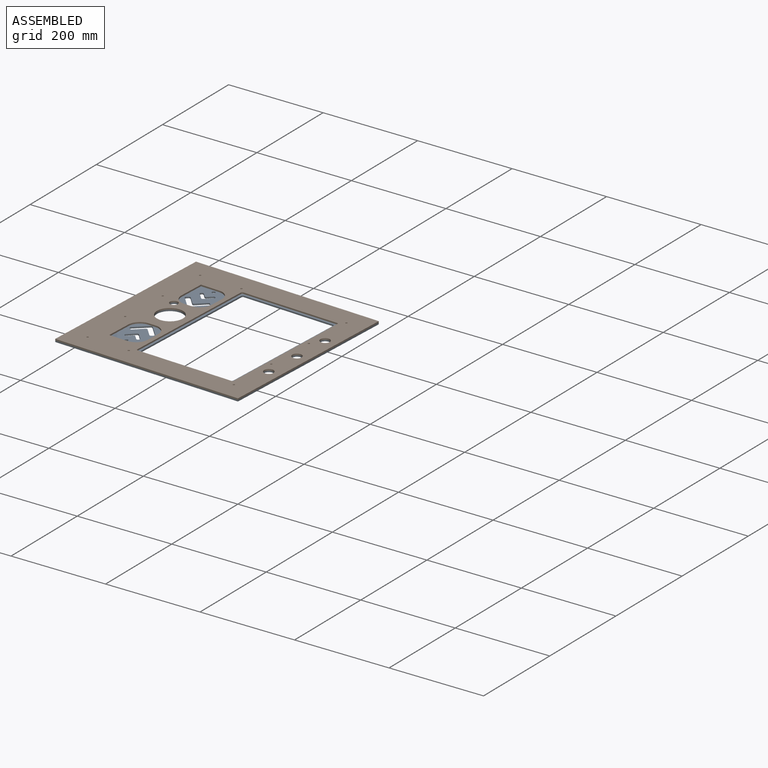
[diagram: assembled view]
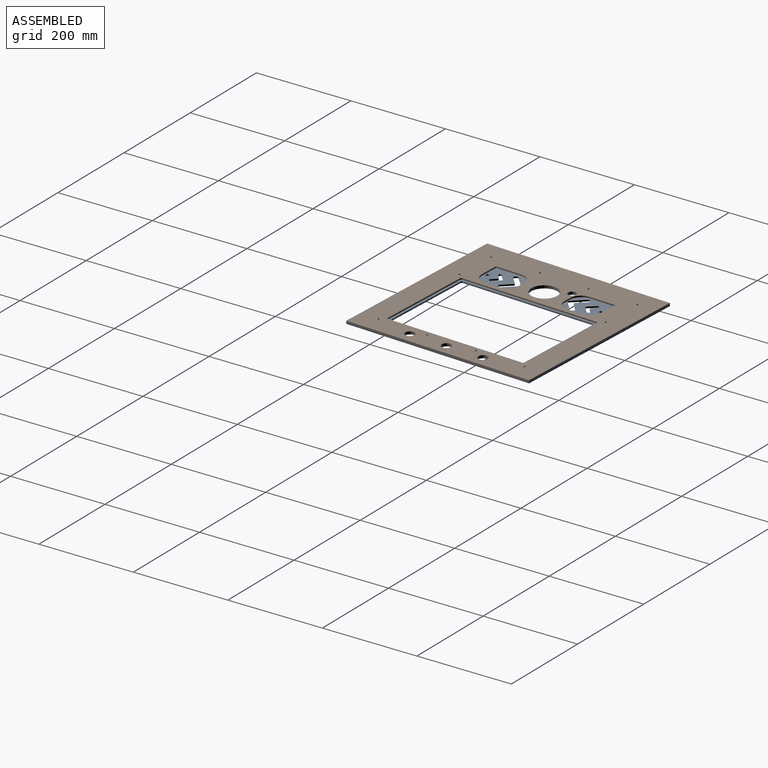
[diagram: assembled view, second angle]
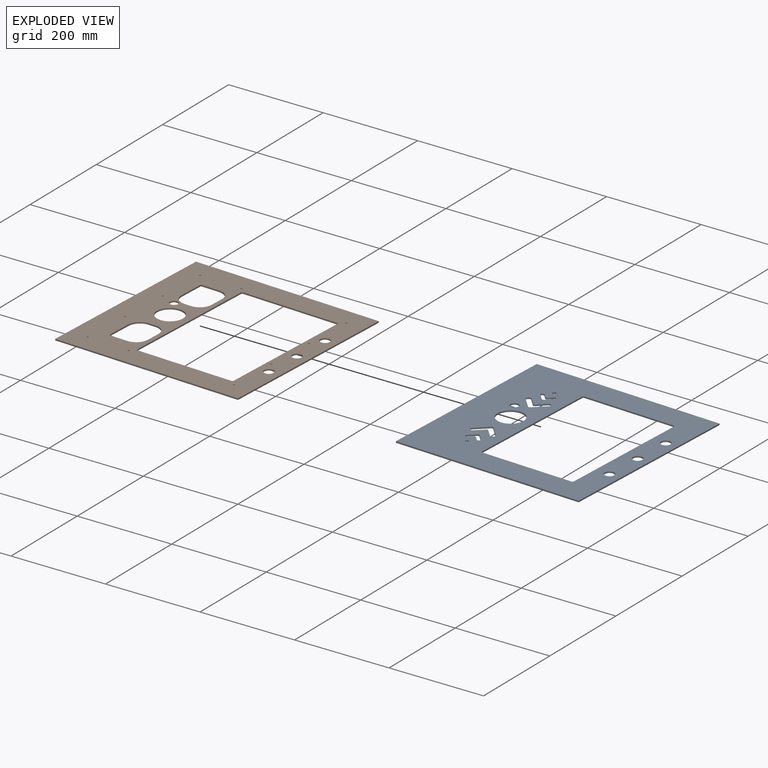
[diagram: exploded view]
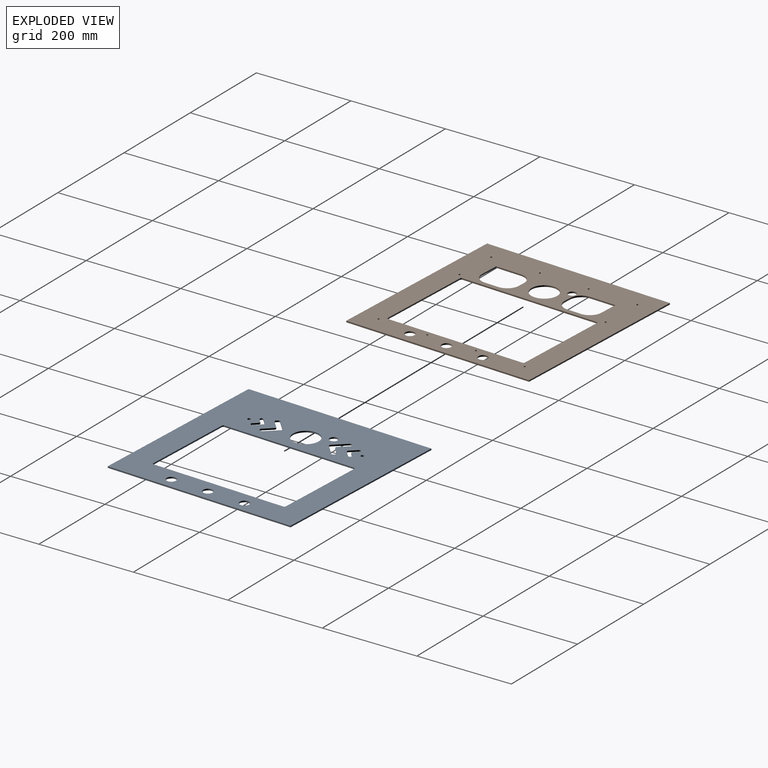
[diagram: exploded view, second angle]
ASSEMBLY  parts=2 mates=3
PART A: 69 faces, bbox 400x3x400 mm
  f0: plane 400x400mm, normal (0,-1,0), area 96124.4mm2, adj f2,f3,f4,f5,f6,f7,f8,f9
  f1: plane 400x400mm, normal (0,1,0), area 96124.4mm2, adj f2,f3,f4,f5,f6,f7,f8,f9
  f2: plane 400x3mm, normal (1,0,0), area 1200mm2, adj f0,f1,f3,f5
  f3: plane 400x3mm, normal (0,0,1), area 1200mm2, adj f0,f1,f2,f4
  f4: plane 400x3mm, normal (-1,0,0), area 1200mm2, adj f0,f1,f3,f5
  f5: plane 400x3mm, normal (0,0,-1), area 1200mm2, adj f0,f1,f2,f4
  f6: cylinder r=27.5mm len=55mm, axis (0,1,0), area 518.4mm2, adj f0,f1
  f7: cylinder r=10mm len=20mm, axis (0,1,0), area 188.5mm2, adj f0,f1
  f8: cylinder r=10mm len=20mm, axis (0,1,0), area 188.5mm2, adj f0,f1
  f9: cylinder r=10mm len=20mm, axis (0,1,0), area 188.5mm2, adj f0,f1
  f10: cylinder r=3.5mm len=7mm, axis (0,-1,0), area 66mm2, adj f0,f1
  f11: plane 13.44x13.44mm, normal (0.71,0,0.71), area 57mm2, adj f0,f1,f23,f28
  f12: plane 13.44x13.44mm, normal (-0.71,0,0.71), area 57mm2, adj f0,f1,f23,f24
  f13: plane 3x0.71mm, normal (-0.71,0,-0.71), area 3mm2, adj f0,f1,f24,f25
  f14: plane 8.49x8.49mm, normal (0.71,0,-0.71), area 36mm2, adj f0,f1,f25,f26
  f15: plane 8.49x8.49mm, normal (-0.71,0,-0.71), area 36mm2, adj f0,f1,f26,f27
  f16: plane 3x0.71mm, normal (0.71,0,-0.71), area 3mm2, adj f0,f1,f27,f28
  f17: plane 3x2.83mm, normal (0.71,0,-0.71), area 12mm2, adj f0,f1,f29,f34
  f18: plane 24.04x24.04mm, normal (0.71,0,0.71), area 102mm2, adj f0,f1,f33,f34
  f19: plane 24.04x24.04mm, normal (-0.71,0,0.71), area 102mm2, adj f0,f1,f32,f33
  f20: plane 3x2.83mm, normal (-0.71,0,-0.71), area 12mm2, adj f0,f1,f31,f32
  f21: plane 16.97x16.97mm, normal (0.71,0,-0.71), area 72mm2, adj f0,f1,f30,f31
  f22: plane 16.97x16.97mm, normal (-0.71,0,-0.71), area 72mm2, adj f0,f1,f29,f30
  f23: cylinder r=3mm len=4.24mm, axis (0,1,0), area 14.1mm2, adj f0,f1,f11,f12
  f24: cylinder r=3mm len=4.24mm, axis (0,1,0), area 14.1mm2, adj f0,f1,f12,f13
  f25: cylinder r=3mm len=4.24mm, axis (0,1,0), area 14.1mm2, adj f0,f1,f13,f14
  f26: cylinder r=3mm len=4.24mm, axis (0,-1,0), area 14.1mm2, adj f0,f1,f14,f15
  f27: cylinder r=3mm len=4.24mm, axis (0,1,0), area 14.1mm2, adj f0,f1,f15,f16
  f28: cylinder r=3mm len=4.24mm, axis (0,1,0), area 14.1mm2, adj f0,f1,f11,f16
  f29: cylinder r=3mm len=4.24mm, axis (0,1,0), area 14.1mm2, adj f0,f1,f17,f22
  f30: cylinder r=3mm len=4.24mm, axis (0,-1,0), area 14.1mm2, adj f0,f1,f21,f22
  f31: cylinder r=3mm len=4.24mm, axis (0,1,0), area 14.1mm2, adj f0,f1,f20,f21
  f32: cylinder r=3mm len=4.24mm, axis (0,1,0), area 14.1mm2, adj f0,f1,f19,f20
  f33: cylinder r=3mm len=4.24mm, axis (0,1,0), area 14.1mm2, adj f0,f1,f18,f19
  f34: cylinder r=3mm len=4.24mm, axis (0,1,0), area 14.1mm2, adj f0,f1,f17,f18
  f35: cylinder r=3.5mm len=7mm, axis (0,-1,0), area 66mm2, adj f0,f1
  f36: plane 13.44x13.44mm, normal (0.71,0,-0.71), area 57mm2, adj f0,f1,f48,f53
  f37: plane 3x0.71mm, normal (0.71,0,0.71), area 3mm2, adj f0,f1,f52,f53
  f38: plane 8.49x8.49mm, normal (-0.71,0,0.71), area 36mm2, adj f0,f1,f51,f52
  f39: plane 8.49x8.49mm, normal (0.71,0,0.71), area 36mm2, adj f0,f1,f50,f51
  f40: plane 3x0.71mm, normal (-0.71,0,0.71), area 3mm2, adj f0,f1,f49,f50
  f41: plane 13.44x13.44mm, normal (-0.71,0,-0.71), area 57mm2, adj f0,f1,f48,f49
  f42: plane 3x2.83mm, normal (0.71,0,0.71), area 12mm2, adj f0,f1,f54,f59
  f43: plane 16.97x16.97mm, normal (-0.71,0,0.71), area 72mm2, adj f0,f1,f54,f55
  f44: plane 16.97x16.97mm, normal (0.71,0,0.71), area 72mm2, adj f0,f1,f55,f56
  f45: plane 3x2.83mm, normal (-0.71,0,0.71), area 12mm2, adj f0,f1,f56,f57
  f46: plane 24.04x24.04mm, normal (-0.71,0,-0.71), area 102mm2, adj f0,f1,f57,f58
  f47: plane 24.04x24.04mm, normal (0.71,0,-0.71), area 102mm2, adj f0,f1,f58,f59
  f48: cylinder r=3mm len=4.24mm, axis (0,1,0), area 14.1mm2, adj f0,f1,f36,f41
  f49: cylinder r=3mm len=4.24mm, axis (0,1,0), area 14.1mm2, adj f0,f1,f40,f41
  f50: cylinder r=3mm len=4.24mm, axis (0,1,0), area 14.1mm2, adj f0,f1,f39,f40
  f51: cylinder r=3mm len=4.24mm, axis (0,-1,0), area 14.1mm2, adj f0,f1,f38,f39
  f52: cylinder r=3mm len=4.24mm, axis (0,1,0), area 14.1mm2, adj f0,f1,f37,f38
  f53: cylinder r=3mm len=4.24mm, axis (0,1,0), area 14.1mm2, adj f0,f1,f36,f37
  f54: cylinder r=3mm len=4.24mm, axis (0,1,0), area 14.1mm2, adj f0,f1,f42,f43
  f55: cylinder r=3mm len=4.24mm, axis (0,-1,0), area 14.1mm2, adj f0,f1,f43,f44
  f56: cylinder r=3mm len=4.24mm, axis (0,1,0), area 14.1mm2, adj f0,f1,f44,f45
  f57: cylinder r=3mm len=4.24mm, axis (0,1,0), area 14.1mm2, adj f0,f1,f45,f46
  f58: cylinder r=3mm len=4.24mm, axis (0,1,0), area 14.1mm2, adj f0,f1,f46,f47
  f59: cylinder r=3mm len=4.24mm, axis (0,1,0), area 14.1mm2, adj f0,f1,f42,f47
  f60: plane 284x3mm, normal (-1,0,0), area 852mm2, adj f0,f1,f61,f65
  f61: cylinder r=3mm len=3mm, axis (0,-1,0), area 14.1mm2, adj f0,f1,f60,f62
  f62: plane 195x3mm, normal (0,0,1), area 585mm2, adj f0,f1,f61,f63
  f63: cylinder r=3mm len=3mm, axis (0,-1,0), area 14.1mm2, adj f0,f1,f62,f64
  f64: plane 284x3mm, normal (1,0,0), area 852mm2, adj f0,f1,f63,f66
  f65: cylinder r=3mm len=3mm, axis (0,-1,0), area 14.1mm2, adj f0,f1,f60,f67
  f66: cylinder r=3mm len=3mm, axis (0,-1,0), area 14.1mm2, adj f0,f1,f64,f67
  f67: plane 195x3mm, normal (0,0,-1), area 585mm2, adj f0,f1,f65,f66
  f68: cylinder r=8.5mm len=17mm, axis (0,-1,0), area 160.2mm2, adj f0,f1
PART B: 43 faces, bbox 400x3x400 mm
  f0: plane 400x400mm, normal (0,-1,0), area 83441.5mm2, adj f2,f3,f4,f5,f6,f7,f8,f9
  f1: plane 400x400mm, normal (0,1,0), area 83441.5mm2, adj f2,f3,f4,f5,f6,f7,f8,f9
  f2: plane 205x3mm, normal (0,0,-1), area 615mm2, adj f0,f1,f24,f26
  f3: plane 205x3mm, normal (0,0,1), area 615mm2, adj f0,f1,f25,f27
  f4: plane 294x3mm, normal (-1,0,0), area 882mm2, adj f0,f1,f26,f27
  f5: plane 400x3mm, normal (1,0,0), area 1200mm2, adj f0,f1,f6,f8
  f6: plane 400x3mm, normal (0,0,1), area 1200mm2, adj f0,f1,f5,f7
  f7: plane 400x3mm, normal (-1,0,0), area 1200mm2, adj f0,f1,f6,f8
  f8: plane 400x3mm, normal (0,0,-1), area 1200mm2, adj f0,f1,f5,f7
  f9: plane 294x3mm, normal (1,0,0), area 882mm2, adj f0,f1,f24,f25
  f10: cylinder r=27.5mm len=55mm, axis (0,1,0), area 518.4mm2, adj f0,f1
  f11: cylinder r=2mm len=4mm, axis (0,1,0), area 37.7mm2, adj f0,f1
  f12: cylinder r=2mm len=4mm, axis (0,1,0), area 37.7mm2, adj f0,f1
  f13: cylinder r=2mm len=4mm, axis (0,1,0), area 37.7mm2, adj f0,f1
  f14: cylinder r=2mm len=4mm, axis (0,1,0), area 37.7mm2, adj f0,f1
  f15: cylinder r=2mm len=4mm, axis (0,1,0), area 37.7mm2, adj f0,f1
  f16: cylinder r=2mm len=4mm, axis (0,1,0), area 37.7mm2, adj f0,f1
  f17: cylinder r=2mm len=4mm, axis (0,1,0), area 37.7mm2, adj f0,f1
  f18: cylinder r=2mm len=4mm, axis (0,1,0), area 37.7mm2, adj f0,f1
  f19: cylinder r=2mm len=4mm, axis (0,1,0), area 37.7mm2, adj f0,f1
  f20: cylinder r=2mm len=4mm, axis (0,1,0), area 37.7mm2, adj f0,f1
  f21: cylinder r=10mm len=20mm, axis (0,1,0), area 188.5mm2, adj f0,f1
  f22: cylinder r=10mm len=20mm, axis (0,1,0), area 188.5mm2, adj f0,f1
  f23: cylinder r=10mm len=20mm, axis (0,1,0), area 188.5mm2, adj f0,f1
  f24: cylinder r=3mm len=3mm, axis (0,-1,0), area 14.1mm2, adj f0,f1,f2,f9
  f25: cylinder r=3mm len=3mm, axis (0,1,0), area 14.1mm2, adj f0,f1,f3,f9
  f26: cylinder r=3mm len=3mm, axis (0,1,0), area 14.1mm2, adj f0,f1,f2,f4
  f27: cylinder r=3mm len=3mm, axis (0,-1,0), area 14.1mm2, adj f0,f1,f3,f4
  f28: plane 15x3mm, normal (0,0,1), area 45mm2, adj f0,f1,f29,f34
  f29: cylinder r=25mm len=25mm, axis (0,1,0), area 117.8mm2, adj f0,f1,f28,f30
  f30: plane 55x3mm, normal (1,0,0), area 165mm2, adj f0,f1,f29,f31
  f31: plane 40x3mm, normal (0,0,-1), area 120mm2, adj f0,f1,f30,f32
  f32: cylinder r=25mm len=25mm, axis (0,1,0), area 117.8mm2, adj f0,f1,f31,f33
  f33: plane 30x3mm, normal (-1,0,0), area 90mm2, adj f0,f1,f32,f34
  f34: cylinder r=25mm len=25mm, axis (0,1,0), area 117.8mm2, adj f0,f1,f28,f33
  f35: plane 15x3mm, normal (0,0,-1), area 45mm2, adj f0,f1,f36,f41
  f36: cylinder r=25mm len=25mm, axis (0,1,0), area 117.8mm2, adj f0,f1,f35,f37
  f37: plane 30x3mm, normal (-1,0,0), area 90mm2, adj f0,f1,f36,f38
  f38: cylinder r=25mm len=25mm, axis (0,1,0), area 117.8mm2, adj f0,f1,f37,f39
  f39: plane 40x3mm, normal (0,0,1), area 120mm2, adj f0,f1,f38,f40
  f40: plane 55x3mm, normal (1,0,0), area 165mm2, adj f0,f1,f39,f41
  f41: cylinder r=25mm len=25mm, axis (0,1,0), area 117.8mm2, adj f0,f1,f35,f40
  f42: cylinder r=8.5mm len=17mm, axis (0,1,0), area 160.2mm2, adj f0,f1
PLACE A rot(axis=(-1,0.02,-0.02),90deg) t=(-220.96,-261.85,174.13)mm
PLACE B rot(axis=(-1,0.02,-0.02),90deg) t=(-220.96,-261.85,177.13)mm
MATE planar A.f4 <-> B.f7  axis (-1,0.05,0) through (-420.75,-252.71,175.63)mm
MATE planar B.f1 <-> A.f0  axis (0,0,-1) through (-241.45,-261.03,177.13)mm
MATE planar B.f6 <-> A.f3  axis (0.05,1,0) through (-211.82,-62.06,178.63)mm
